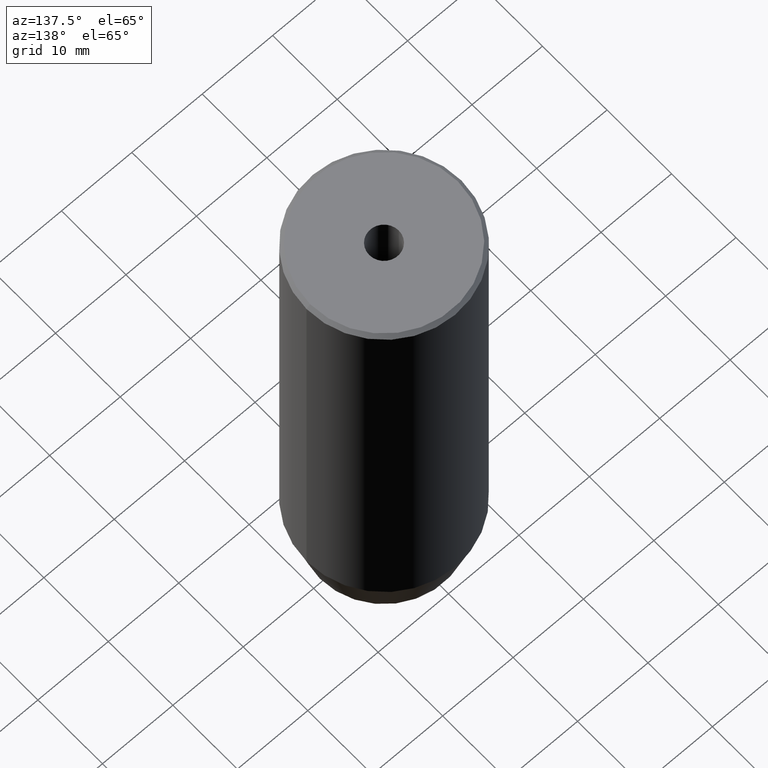
[diagram: clean part render]
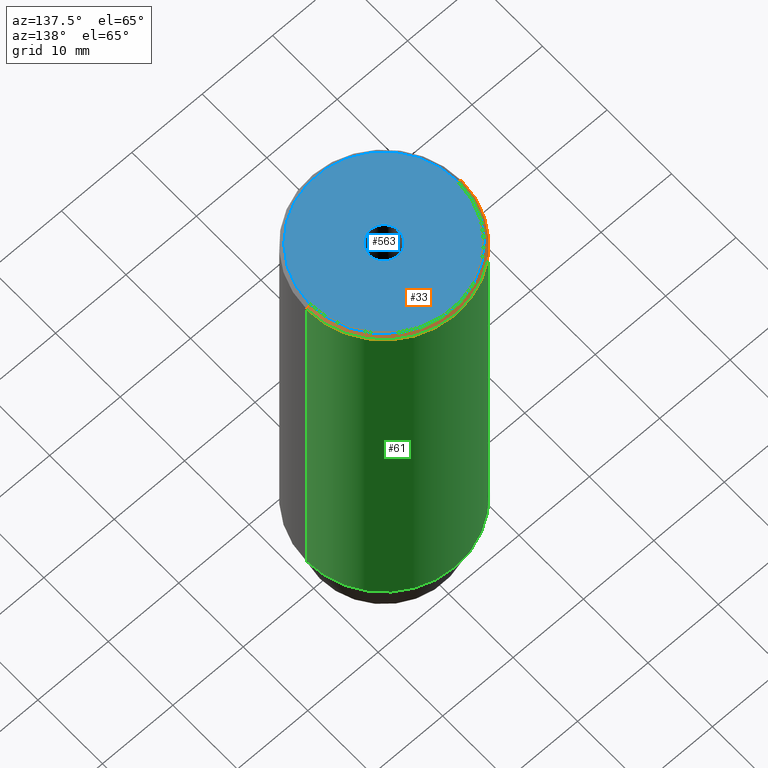
[diagram: same view with three faces highlighted in distinct colors, each labeled with its STEP entity id]
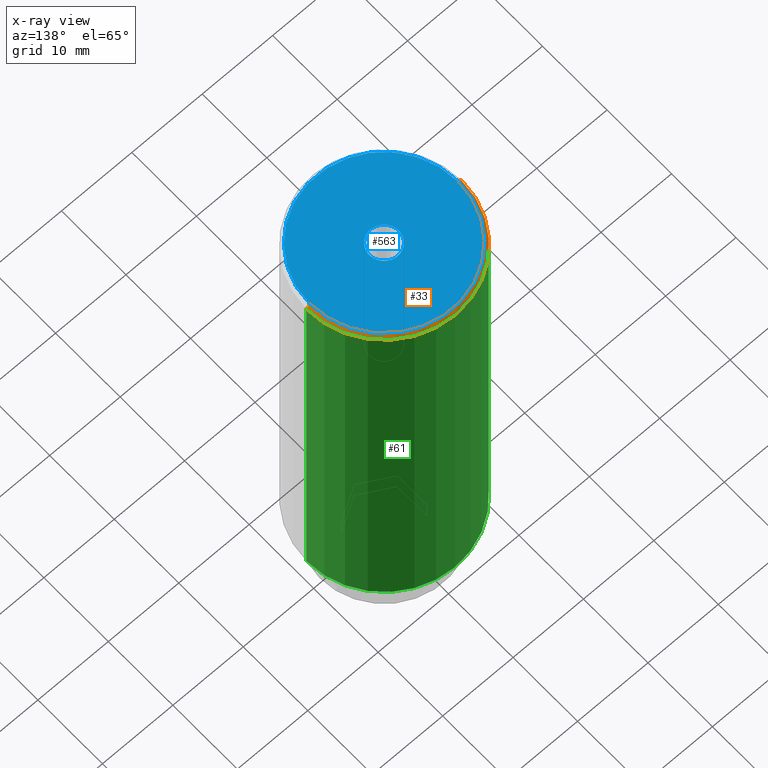
[diagram: x-ray of the same camera — body ghosted, the three highlighted faces saturated]
A machine part, auxiliary view with three faces highlighted in distinct colors.
The next image is the same camera in x-ray (body ghosted, the three faces saturated) — at least one of them is partly hidden behind the body in this view.
Their STEP definitions:

[orange] entity #33 — the highlighted conical surface has half-angle 45 deg.
#9 = LINE ( 'NONE', #536, #107 ) ;
#21 = DIRECTION ( 'NONE',  ( 1.000000000000000000, 0.000000000000000000, 0.000000000000000000 ) ) ;
#33 = ADVANCED_FACE ( 'NONE', ( #168 ), #103, .T. ) ;
#48 = DIRECTION ( 'NONE',  ( -0.7071067811865451302, 0.000000000000000000, -0.7071067811865500152 ) ) ;
#68 = EDGE_CURVE ( 'NONE', #173, #346, #141, .T. ) ;
#102 = ORIENTED_EDGE ( 'NONE', *, *, #246, .T. ) ;
#103 = CONICAL_SURFACE ( 'NONE', #331, 10.49999999999998224, 0.7853981633974447263 ) ;
#107 = VECTOR ( 'NONE', #233, 1000.000000000000114 ) ;
#120 = ORIENTED_EDGE ( 'NONE', *, *, #68, .F. ) ;
#141 = LINE ( 'NONE', #538, #499 ) ;
#144 = VERTEX_POINT ( 'NONE', #515 ) ;
#148 = ORIENTED_EDGE ( 'NONE', *, *, #180, .F. ) ;
#168 = FACE_OUTER_BOUND ( 'NONE', #387, .T. ) ;
#173 = VERTEX_POINT ( 'NONE', #495 ) ;
#179 = DIRECTION ( 'NONE',  ( -0.000000000000000000, -0.000000000000000000, 1.000000000000000000 ) ) ;
#180 = EDGE_CURVE ( 'NONE', #244, #173, #475, .T. ) ;
#195 = ORIENTED_EDGE ( 'NONE', *, *, #415, .F. ) ;
#233 = DIRECTION ( 'NONE',  ( 0.7071067811865451302, 8.659560562354904508E-17, -0.7071067811865500152 ) ) ;
#235 = CARTESIAN_POINT ( 'NONE',  ( 0.000000000000000000, 0.000000000000000000, 0.000000000000000000 ) ) ;
#244 = VERTEX_POINT ( 'NONE', #533 ) ;
#246 = EDGE_CURVE ( 'NONE', #244, #144, #9, .T. ) ;
#281 = DIRECTION ( 'NONE',  ( 1.000000000000000000, 0.000000000000000000, 0.000000000000000000 ) ) ;
#331 = AXIS2_PLACEMENT_3D ( 'NONE', #447, #363, #460 ) ;
#346 = VERTEX_POINT ( 'NONE', #544 ) ;
#363 = DIRECTION ( 'NONE',  ( 0.000000000000000000, 0.000000000000000000, -1.000000000000000000 ) ) ;
#380 = CARTESIAN_POINT ( 'NONE',  ( 0.000000000000000000, 0.000000000000000000, -0.5000000000000213163 ) ) ;
#384 = AXIS2_PLACEMENT_3D ( 'NONE', #235, #179, #281 ) ;
#387 = EDGE_LOOP ( 'NONE', ( #148, #102, #195, #120 ) ) ;
#399 = AXIS2_PLACEMENT_3D ( 'NONE', #380, #425, #21 ) ;
#415 = EDGE_CURVE ( 'NONE', #346, #144, #581, .T. ) ;
#425 = DIRECTION ( 'NONE',  ( 0.000000000000000000, 0.000000000000000000, -1.000000000000000000 ) ) ;
#447 = CARTESIAN_POINT ( 'NONE',  ( 0.000000000000000000, 0.000000000000000000, 0.000000000000000000 ) ) ;
#460 = DIRECTION ( 'NONE',  ( -1.000000000000000000, 0.000000000000000000, 0.000000000000000000 ) ) ;
#475 = CIRCLE ( 'NONE', #384, 10.49999999999998224 ) ;
#495 = CARTESIAN_POINT ( 'NONE',  ( -10.49999999999998224, 0.000000000000000000, 0.000000000000000000 ) ) ;
#499 = VECTOR ( 'NONE', #48, 1000.000000000000114 ) ;
#515 = CARTESIAN_POINT ( 'NONE',  ( 11.00000000000000000, 0.000000000000000000, -0.5000000000000213163 ) ) ;
#533 = CARTESIAN_POINT ( 'NONE',  ( 10.49999999999998224, 1.316495309083403434E-15, 0.000000000000000000 ) ) ;
#536 = CARTESIAN_POINT ( 'NONE',  ( 10.49999999999998224, 1.285879139104718661E-15, 0.000000000000000000 ) ) ;
#538 = CARTESIAN_POINT ( 'NONE',  ( -10.49999999999998224, 0.000000000000000000, 0.000000000000000000 ) ) ;
#544 = CARTESIAN_POINT ( 'NONE',  ( -11.00000000000000000, 1.347111479062088405E-15, -0.5000000000000213163 ) ) ;
#581 = CIRCLE ( 'NONE', #399, 11.00000000000000000 ) ;

[blue] entity #563 — the highlighted planar face has unit normal (0, -0, 1).
#51 = DIRECTION ( 'NONE',  ( 1.000000000000000000, 0.000000000000000000, 0.000000000000000000 ) ) ;
#71 = AXIS2_PLACEMENT_3D ( 'NONE', #137, #587, #51 ) ;
#85 = DIRECTION ( 'NONE',  ( 1.000000000000000000, 0.000000000000000000, 0.000000000000000000 ) ) ;
#99 = FACE_OUTER_BOUND ( 'NONE', #322, .T. ) ;
#135 = CARTESIAN_POINT ( 'NONE',  ( 0.000000000000000000, 0.000000000000000000, 0.000000000000000000 ) ) ;
#137 = CARTESIAN_POINT ( 'NONE',  ( 0.000000000000000000, 0.000000000000000000, -1.990051048614449116E-16 ) ) ;
#145 = DIRECTION ( 'NONE',  ( 1.000000000000000000, 0.000000000000000000, 0.000000000000000000 ) ) ;
#146 = FACE_BOUND ( 'NONE', #299, .T. ) ;
#165 = EDGE_CURVE ( 'NONE', #255, #545, #167, .T. ) ;
#167 = CIRCLE ( 'NONE', #577, 2.099999999999998757 ) ;
#173 = VERTEX_POINT ( 'NONE', #495 ) ;
#179 = DIRECTION ( 'NONE',  ( -0.000000000000000000, -0.000000000000000000, 1.000000000000000000 ) ) ;
#180 = EDGE_CURVE ( 'NONE', #244, #173, #475, .T. ) ;
#196 = DIRECTION ( 'NONE',  ( -0.000000000000000000, -0.000000000000000000, 1.000000000000000000 ) ) ;
#235 = CARTESIAN_POINT ( 'NONE',  ( 0.000000000000000000, 0.000000000000000000, 0.000000000000000000 ) ) ;
#244 = VERTEX_POINT ( 'NONE', #533 ) ;
#255 = VERTEX_POINT ( 'NONE', #311 ) ;
#272 = DIRECTION ( 'NONE',  ( -0.000000000000000000, -0.000000000000000000, 1.000000000000000000 ) ) ;
#276 = CIRCLE ( 'NONE', #564, 10.49999999999998224 ) ;
#278 = AXIS2_PLACEMENT_3D ( 'NONE', #427, #510, #145 ) ;
#281 = DIRECTION ( 'NONE',  ( 1.000000000000000000, 0.000000000000000000, 0.000000000000000000 ) ) ;
#286 = CARTESIAN_POINT ( 'NONE',  ( 0.000000000000000000, 0.000000000000000000, -1.990051048614449116E-16 ) ) ;
#290 = ORIENTED_EDGE ( 'NONE', *, *, #526, .F. ) ;
#299 = EDGE_LOOP ( 'NONE', ( #290, #434 ) ) ;
#311 = CARTESIAN_POINT ( 'NONE',  ( -2.099999999999998757, 2.571758278209440478E-16, -1.990051048614449116E-16 ) ) ;
#313 = CARTESIAN_POINT ( 'NONE',  ( 2.099999999999998757, 0.000000000000000000, -1.990051048614449116E-16 ) ) ;
#322 = EDGE_LOOP ( 'NONE', ( #339, #500 ) ) ;
#332 = PLANE ( 'NONE',  #278 ) ;
#339 = ORIENTED_EDGE ( 'NONE', *, *, #356, .T. ) ;
#356 = EDGE_CURVE ( 'NONE', #173, #244, #276, .T. ) ;
#384 = AXIS2_PLACEMENT_3D ( 'NONE', #235, #179, #281 ) ;
#400 = CIRCLE ( 'NONE', #71, 2.099999999999998757 ) ;
#427 = CARTESIAN_POINT ( 'NONE',  ( 0.000000000000000000, 0.000000000000000000, 0.000000000000000000 ) ) ;
#434 = ORIENTED_EDGE ( 'NONE', *, *, #165, .F. ) ;
#472 = DIRECTION ( 'NONE',  ( 1.000000000000000000, 0.000000000000000000, 0.000000000000000000 ) ) ;
#475 = CIRCLE ( 'NONE', #384, 10.49999999999998224 ) ;
#495 = CARTESIAN_POINT ( 'NONE',  ( -10.49999999999998224, 0.000000000000000000, 0.000000000000000000 ) ) ;
#500 = ORIENTED_EDGE ( 'NONE', *, *, #180, .T. ) ;
#510 = DIRECTION ( 'NONE',  ( 0.000000000000000000, -0.000000000000000000, 1.000000000000000000 ) ) ;
#526 = EDGE_CURVE ( 'NONE', #545, #255, #400, .T. ) ;
#533 = CARTESIAN_POINT ( 'NONE',  ( 10.49999999999998224, 1.316495309083403434E-15, 0.000000000000000000 ) ) ;
#545 = VERTEX_POINT ( 'NONE', #313 ) ;
#563 = ADVANCED_FACE ( 'NONE', ( #146, #99 ), #332, .T. ) ;
#564 = AXIS2_PLACEMENT_3D ( 'NONE', #135, #272, #85 ) ;
#577 = AXIS2_PLACEMENT_3D ( 'NONE', #286, #196, #472 ) ;
#587 = DIRECTION ( 'NONE',  ( -0.000000000000000000, -0.000000000000000000, 1.000000000000000000 ) ) ;

[green] entity #61 — the highlighted cylindrical surface (partial cylindrical patch) has radius 11 mm, axis along (-0, -0, 1).
#21 = DIRECTION ( 'NONE',  ( 1.000000000000000000, 0.000000000000000000, 0.000000000000000000 ) ) ;
#27 = CIRCLE ( 'NONE', #224, 11.00000000000000000 ) ;
#45 = DIRECTION ( 'NONE',  ( -0.000000000000000000, -0.000000000000000000, 1.000000000000000000 ) ) ;
#50 = EDGE_CURVE ( 'NONE', #531, #248, #27, .T. ) ;
#61 = ADVANCED_FACE ( 'NONE', ( #87 ), #270, .T. ) ;
#67 = ORIENTED_EDGE ( 'NONE', *, *, #334, .F. ) ;
#87 = FACE_OUTER_BOUND ( 'NONE', #458, .T. ) ;
#88 = CARTESIAN_POINT ( 'NONE',  ( 11.00000000000000000, 0.000000000000000000, 0.000000000000000000 ) ) ;
#89 = CARTESIAN_POINT ( 'NONE',  ( 0.000000000000000000, 0.000000000000000000, -63.00000000000000000 ) ) ;
#114 = ORIENTED_EDGE ( 'NONE', *, *, #506, .T. ) ;
#131 = DIRECTION ( 'NONE',  ( -0.000000000000000000, -0.000000000000000000, 1.000000000000000000 ) ) ;
#139 = VECTOR ( 'NONE', #501, 1000.000000000000000 ) ;
#144 = VERTEX_POINT ( 'NONE', #515 ) ;
#219 = CARTESIAN_POINT ( 'NONE',  ( 11.00000000000000000, 0.000000000000000000, -63.00000000000000000 ) ) ;
#222 = LINE ( 'NONE', #450, #443 ) ;
#224 = AXIS2_PLACEMENT_3D ( 'NONE', #89, #131, #417 ) ;
#248 = VERTEX_POINT ( 'NONE', #314 ) ;
#270 = CYLINDRICAL_SURFACE ( 'NONE', #282, 11.00000000000000000 ) ;
#274 = ORIENTED_EDGE ( 'NONE', *, *, #50, .T. ) ;
#275 = DIRECTION ( 'NONE',  ( -0.000000000000000000, -0.000000000000000000, 1.000000000000000000 ) ) ;
#282 = AXIS2_PLACEMENT_3D ( 'NONE', #491, #45, #352 ) ;
#296 = ORIENTED_EDGE ( 'NONE', *, *, #415, .T. ) ;
#314 = CARTESIAN_POINT ( 'NONE',  ( -11.00000000000000000, 1.347111479062088405E-15, -63.00000000000000000 ) ) ;
#325 = LINE ( 'NONE', #88, #139 ) ;
#334 = EDGE_CURVE ( 'NONE', #531, #144, #325, .T. ) ;
#346 = VERTEX_POINT ( 'NONE', #544 ) ;
#352 = DIRECTION ( 'NONE',  ( 1.000000000000000000, 0.000000000000000000, 0.000000000000000000 ) ) ;
#380 = CARTESIAN_POINT ( 'NONE',  ( 0.000000000000000000, 0.000000000000000000, -0.5000000000000213163 ) ) ;
#399 = AXIS2_PLACEMENT_3D ( 'NONE', #380, #425, #21 ) ;
#415 = EDGE_CURVE ( 'NONE', #346, #144, #581, .T. ) ;
#417 = DIRECTION ( 'NONE',  ( 1.000000000000000000, 0.000000000000000000, 0.000000000000000000 ) ) ;
#425 = DIRECTION ( 'NONE',  ( 0.000000000000000000, 0.000000000000000000, -1.000000000000000000 ) ) ;
#443 = VECTOR ( 'NONE', #275, 1000.000000000000000 ) ;
#450 = CARTESIAN_POINT ( 'NONE',  ( -11.00000000000000000, 1.347111479062088405E-15, 0.000000000000000000 ) ) ;
#458 = EDGE_LOOP ( 'NONE', ( #274, #114, #296, #67 ) ) ;
#491 = CARTESIAN_POINT ( 'NONE',  ( 0.000000000000000000, 0.000000000000000000, 0.000000000000000000 ) ) ;
#501 = DIRECTION ( 'NONE',  ( -0.000000000000000000, -0.000000000000000000, 1.000000000000000000 ) ) ;
#506 = EDGE_CURVE ( 'NONE', #248, #346, #222, .T. ) ;
#515 = CARTESIAN_POINT ( 'NONE',  ( 11.00000000000000000, 0.000000000000000000, -0.5000000000000213163 ) ) ;
#531 = VERTEX_POINT ( 'NONE', #219 ) ;
#544 = CARTESIAN_POINT ( 'NONE',  ( -11.00000000000000000, 1.347111479062088405E-15, -0.5000000000000213163 ) ) ;
#581 = CIRCLE ( 'NONE', #399, 11.00000000000000000 ) ;